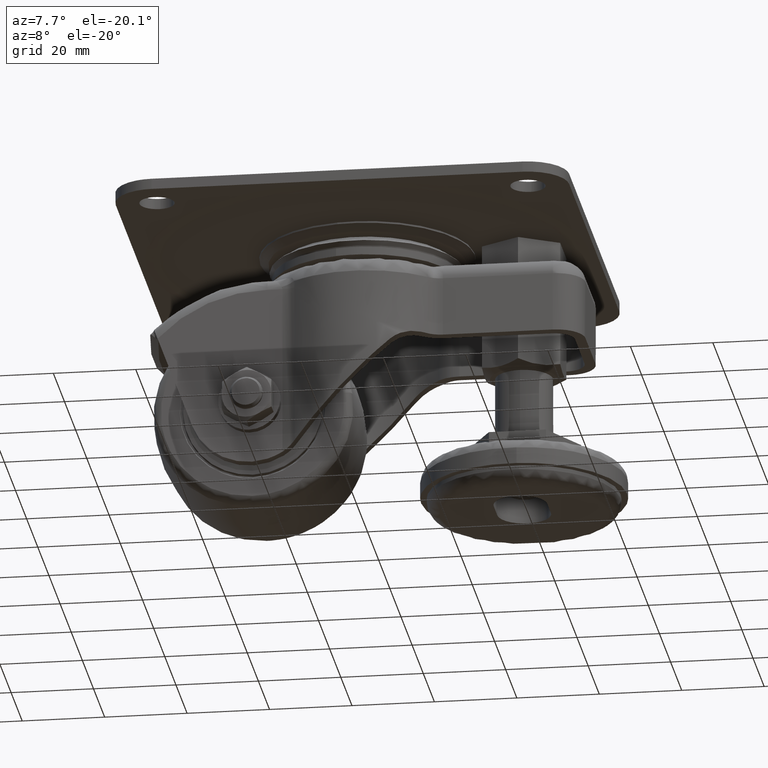
[diagram: clean part render]
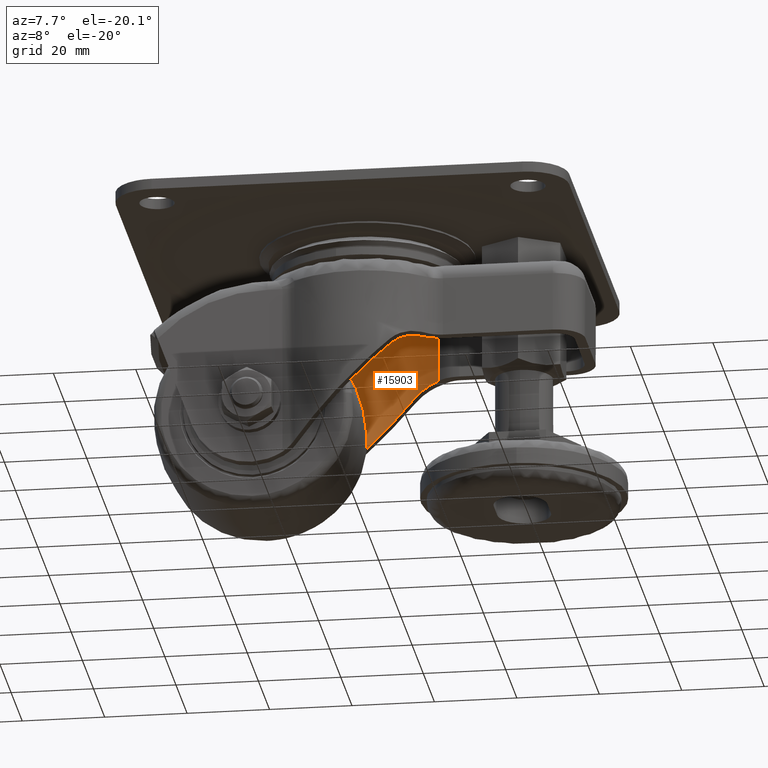
[diagram: same view with one face highlighted and labeled with its STEP entity id]
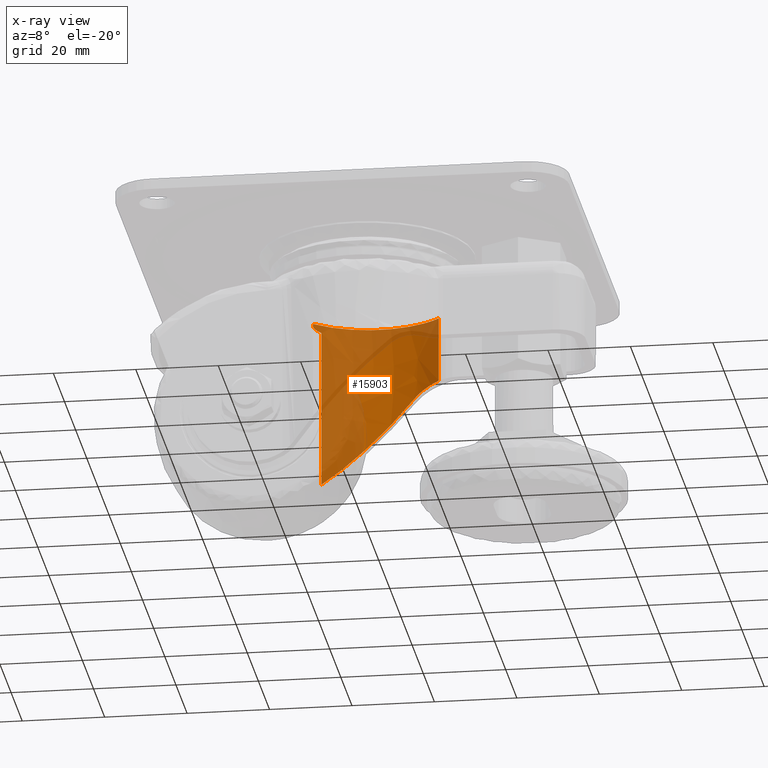
[diagram: x-ray of the same camera — body ghosted, the highlighted face saturated]
A machine part, auxiliary view. The second image highlights one B-rep face of the part: STEP entity #15903.
The next image is the same camera in x-ray: the body ghosted, the highlighted face saturated — about 56% of this face is hidden behind the body in this view.
In plain terms, the highlighted face is a freeform B-spline surface patch.
Its self-contained STEP definition (entity closure, byte-faithful):
#14599=CARTESIAN_POINT('',(15.181412628661599,15.645653858304451,-29.001286734869300));
#14600=VERTEX_POINT('',#14599);
#14624=CARTESIAN_POINT('',(15.181412628661599,15.645653858304451,-13.092616551895301));
#14625=VERTEX_POINT('',#14624);
#14639=CARTESIAN_POINT('',(15.181412628661599,15.645653858304451,-13.092616551895301));
#14640=CARTESIAN_POINT('',(15.181412628661599,15.645653858304451,-29.001286734869300));
#14641=QUASI_UNIFORM_CURVE('',1,(#14639,#14640),.UNSPECIFIED.,.F.,.U.);
#14642=EDGE_CURVE('',#14625,#14600,#14641,.T.);
#15165=CARTESIAN_POINT('',(8.520640042121759,20.066402107069202,-31.893284553987449));
#15166=VERTEX_POINT('',#15165);
#15167=CARTESIAN_POINT('',(15.181412628661599,15.645653858304451,-29.001286734869300));
#15168=CARTESIAN_POINT('',(14.656347068646779,16.155140396425178,-29.021278692415759));
#15169=CARTESIAN_POINT('',(14.112758131910560,16.631342618783819,-29.083150449788850));
#15170=CARTESIAN_POINT('',(13.273979077331489,17.297129949513629,-29.255107356299270));
#15171=CARTESIAN_POINT('',(12.990486738461980,17.510961295937111,-29.325665418202689));
#15172=CARTESIAN_POINT('',(12.559998760174700,17.819635493870269,-29.454073350441611));
#15173=CARTESIAN_POINT('',(12.415628485252070,17.920514063422761,-29.500643771664269));
#15174=CARTESIAN_POINT('',(12.125250082843790,18.118249512842912,-29.601860202821630));
#15175=CARTESIAN_POINT('',(11.979046058204871,18.215218792938501,-29.656607188831849));
#15176=CARTESIAN_POINT('',(11.252443915145420,18.684842638189821,-29.948543436477291));
#15177=CARTESIAN_POINT('',(10.679096006673589,19.016181854239939,-30.241898044789590));
#15178=CARTESIAN_POINT('',(9.981997647903448,19.381596997698740,-30.693900062930780));
#15179=CARTESIAN_POINT('',(9.843567848320804,19.452235907765751,-30.788591235803811));
#15180=CARTESIAN_POINT('',(9.568982945916146,19.588769108257729,-30.986939050050051));
#15181=CARTESIAN_POINT('',(9.432523323209020,19.654803987515329,-31.090849493044448));
#15182=CARTESIAN_POINT('',(9.029911355815688,19.844660850673009,-31.414347947611251));
#15183=CARTESIAN_POINT('',(8.770334467193313,19.960376308064109,-31.645682853283859));
#15184=CARTESIAN_POINT('',(8.520640042121759,20.066402107069202,-31.893284553987449));
#15185=B_SPLINE_CURVE_WITH_KNOTS('',3,(#15167,#15168,#15169,#15170,#15171,#15172,#15173,#15174,#15175,#15176,#15177,#15178,#15179,#15180,#15181,#15182,#15183,#15184),.UNSPECIFIED.,.F.,.U.,(4,2,2,2,2,2,2,2,4),(0.0,0.249999999999999,0.374999999999999,0.437499999999999,0.499999999999999,0.750000000000000,0.812500000000000,0.875000000000000,1.0),.UNSPECIFIED.);
#15186=EDGE_CURVE('',#14600,#15166,#15185,.T.);
#15233=CARTESIAN_POINT('',(-13.485932008363340,17.128672981752000,-53.715416612846212));
#15234=VERTEX_POINT('',#15233);
#15235=CARTESIAN_POINT('',(-13.485932008363349,17.128672981752000,-53.715416612846191));
#15236=CARTESIAN_POINT('',(-3.351703882677654,25.107663041626530,-43.666124793748992));
#15237=CARTESIAN_POINT('',(8.520640042121773,20.066402107069202,-31.893284553987499));
#15245=(BOUNDED_CURVE()B_SPLINE_CURVE(2,(#15235,#15236,#15237),.UNSPECIFIED.,.F.,.U.)CURVE()GEOMETRIC_REPRESENTATION_ITEM()QUASI_UNIFORM_CURVE()RATIONAL_B_SPLINE_CURVE((1.0,0.860646042909239,1.0))REPRESENTATION_ITEM(''));
#15246=EDGE_CURVE('',#15234,#15166,#15245,.T.);
#15328=CARTESIAN_POINT('',(-15.330094593641650,15.500000000000000,-13.092616551895301));
#15329=VERTEX_POINT('',#15328);
#15349=CARTESIAN_POINT('',(-15.330094593641640,15.499999999999980,-13.092616551895301));
#15350=CARTESIAN_POINT('',(-0.145685107970405,30.517963468640605,-13.092616551895301));
#15351=CARTESIAN_POINT('',(15.181413047029510,15.645654289465890,-13.092616551895301));
#15359=(BOUNDED_CURVE()B_SPLINE_CURVE(2,(#15349,#15350,#15351),.UNSPECIFIED.,.F.,.U.)CURVE()GEOMETRIC_REPRESENTATION_ITEM()QUASI_UNIFORM_CURVE()RATIONAL_B_SPLINE_CURVE((1.0,0.714341624542134,1.0))REPRESENTATION_ITEM(''));
#15360=EDGE_CURVE('',#15329,#14625,#15359,.T.);
#15394=CARTESIAN_POINT('',(-13.485932008363321,17.128672981752000,-14.961363807744659));
#15395=VERTEX_POINT('',#15394);
#15396=CARTESIAN_POINT('',(-13.485932008363321,17.128672981752000,-14.961363807744659));
#15397=CARTESIAN_POINT('',(-13.485932008363340,17.128672981752000,-53.715416612846212));
#15398=QUASI_UNIFORM_CURVE('',1,(#15396,#15397),.UNSPECIFIED.,.F.,.U.);
#15399=EDGE_CURVE('',#15395,#15234,#15398,.T.);
#15816=CARTESIAN_POINT('',(-15.330094593641650,15.500000000000000,-13.692118673674260));
#15817=VERTEX_POINT('',#15816);
#15831=CARTESIAN_POINT('',(-15.330094593641650,15.500000000000000,-13.092616551895301));
#15832=CARTESIAN_POINT('',(-15.330094593641650,15.500000000000000,-13.692118673674260));
#15833=QUASI_UNIFORM_CURVE('',1,(#15831,#15832),.UNSPECIFIED.,.F.,.U.);
#15834=EDGE_CURVE('',#15329,#15817,#15833,.T.);
#15854=CARTESIAN_POINT('',(15.633188422159490,15.194249570388740,-12.077046550371531));
#15855=CARTESIAN_POINT('',(15.633188422159490,15.194249570388740,-54.756375864408071));
#15856=CARTESIAN_POINT('',(-0.800660243546996,32.102847227816227,-12.077046550371525));
#15857=CARTESIAN_POINT('',(-0.800660243546996,32.102847227816227,-54.756375864408071));
#15858=CARTESIAN_POINT('',(-16.371184418255272,14.396045324792341,-12.077046550371525));
#15859=CARTESIAN_POINT('',(-16.371184418255272,14.396045324792341,-54.756375864408056));
#15867=(BOUNDED_SURFACE()B_SPLINE_SURFACE(1,2,((#15854,#15856,#15858),(#15855,#15857,#15859)),.UNSPECIFIED.,.F.,.F.,.U.)B_SPLINE_SURFACE_WITH_KNOTS((2,2),(3,3),(0.0,42.679329314036544),(0.0,38.137856271407550),.UNSPECIFIED.)GEOMETRIC_REPRESENTATION_ITEM()RATIONAL_B_SPLINE_SURFACE(((1.0,0.677548960244862,0.996106148231427),(1.0,0.677548960244862,0.996106148231427)))REPRESENTATION_ITEM('')SURFACE());
#15868=CARTESIAN_POINT('',(-15.330094593641650,15.500000000000000,-13.692118673674260));
#15869=CARTESIAN_POINT('',(-15.330094593641650,15.500000000000000,-13.722899600665819));
#15870=CARTESIAN_POINT('',(-15.327253193486760,15.502811549000381,-13.752952702705111));
#15871=CARTESIAN_POINT('',(-15.316594029978580,15.513342763630730,-13.811786253955400));
#15872=CARTESIAN_POINT('',(-15.308673418016561,15.521162985609790,-13.840704874910680));
#15873=CARTESIAN_POINT('',(-15.289452117440799,15.540097689327281,-13.895015986183340));
#15874=CARTESIAN_POINT('',(-15.278109638335620,15.551253355265230,-13.920779936110460));
#15875=CARTESIAN_POINT('',(-15.252776635744301,15.576100922270150,-13.970198269618971));
#15876=CARTESIAN_POINT('',(-15.238777210877901,15.589800848001570,-13.993812083582160));
#15877=CARTESIAN_POINT('',(-15.194712209547600,15.632792635083259,-14.060653091726721));
#15878=CARTESIAN_POINT('',(-15.162282685828250,15.664266839503130,-14.100673547890841));
#15879=CARTESIAN_POINT('',(-15.093645906292879,15.730414016152670,-14.175311017721670));
#15880=CARTESIAN_POINT('',(-15.057346804138881,15.765174003126310,-14.209869885209750));
#15881=CARTESIAN_POINT('',(-14.946395755893050,15.870648054634239,-14.306224057658479));
#15882=CARTESIAN_POINT('',(-14.868951685560621,15.943268428007579,-14.361772493981100));
#15883=CARTESIAN_POINT('',(-14.709794364535741,16.090229400108370,-14.463783540887100));
#15884=CARTESIAN_POINT('',(-14.628012799330691,16.164640227536239,-14.510039862740150));
#15885=CARTESIAN_POINT('',(-14.461100718735841,16.314132466841230,-14.596393276908289));
#15886=CARTESIAN_POINT('',(-14.375841799315520,16.389326646799471,-14.636485964538441));
#15887=CARTESIAN_POINT('',(-14.203259914837661,16.539113131181011,-14.711803634261940));
#15888=CARTESIAN_POINT('',(-14.115878180498081,16.613762663490121,-14.747048715159281));
#15889=CARTESIAN_POINT('',(-13.850774020012601,16.836601939771111,-14.847249986037850));
#15890=CARTESIAN_POINT('',(-13.670109233586629,16.983664577452590,-14.906757544434029));
#15891=CARTESIAN_POINT('',(-13.485932008363340,17.128672981752000,-14.961363807744720));
#15892=B_SPLINE_CURVE_WITH_KNOTS('',3,(#15868,#15869,#15870,#15871,#15872,#15873,#15874,#15875,#15876,#15877,#15878,#15879,#15880,#15881,#15882,#15883,#15884,#15885,#15886,#15887,#15888,#15889,#15890,#15891),.UNSPECIFIED.,.F.,.U.,(4,2,2,2,2,2,2,2,2,2,2,4),(0.0,0.031250000000000,0.062500000000000,0.093750000000001,0.125000000000001,0.187500000000002,0.250000000000002,0.375000000000002,0.500000000000001,0.625000000000001,0.750000000000000,1.0),.UNSPECIFIED.);
#15893=EDGE_CURVE('',#15817,#15395,#15892,.T.);
#15894=ORIENTED_EDGE('',*,*,#15893,.T.);
#15895=ORIENTED_EDGE('',*,*,#15399,.T.);
#15896=ORIENTED_EDGE('',*,*,#15246,.T.);
#15897=ORIENTED_EDGE('',*,*,#15186,.F.);
#15898=ORIENTED_EDGE('',*,*,#14642,.F.);
#15899=ORIENTED_EDGE('',*,*,#15360,.F.);
#15900=ORIENTED_EDGE('',*,*,#15834,.T.);
#15901=EDGE_LOOP('',(#15894,#15895,#15896,#15897,#15898,#15899,#15900));
#15902=FACE_OUTER_BOUND('',#15901,.T.);
#15903=ADVANCED_FACE('',(#15902),#15867,.F.);